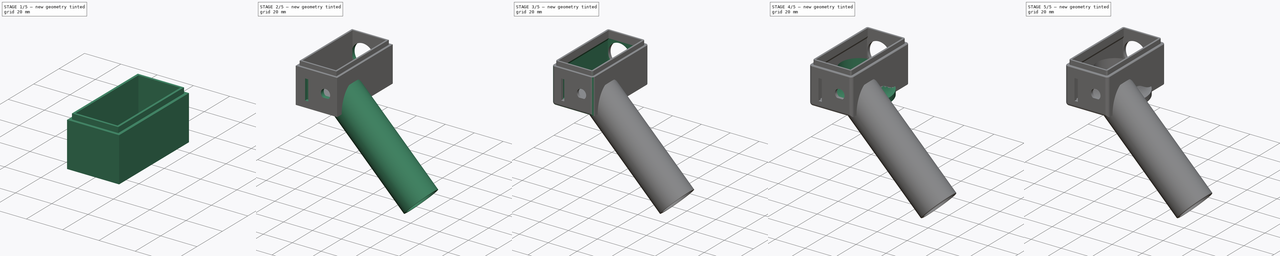
[diagram: build sequence overview — one tinted view per stage of 5, left to right]
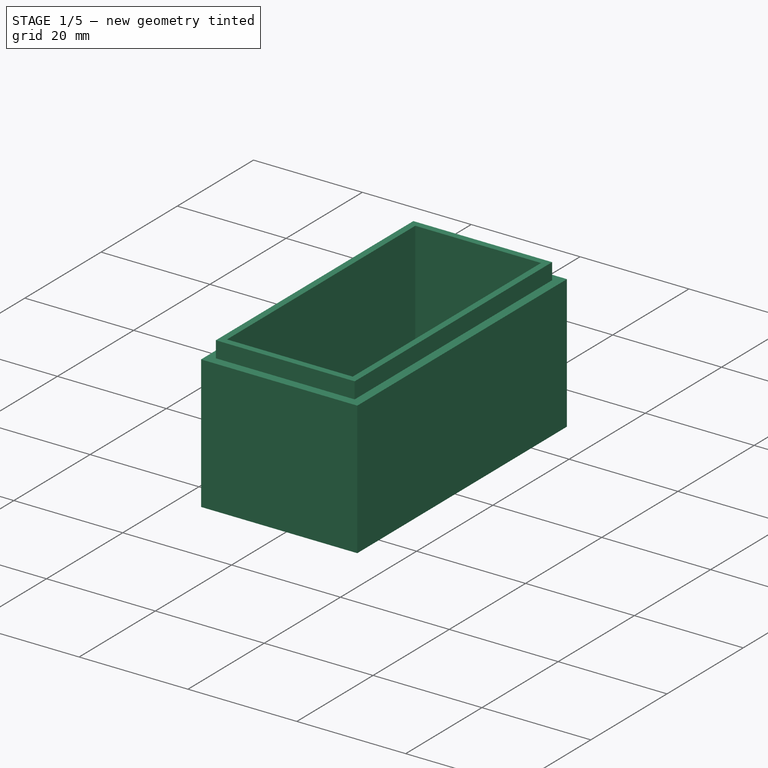
[diagram: stage 1 of 5 — iso view after this stage's code; geometry added in this stage tinted green]
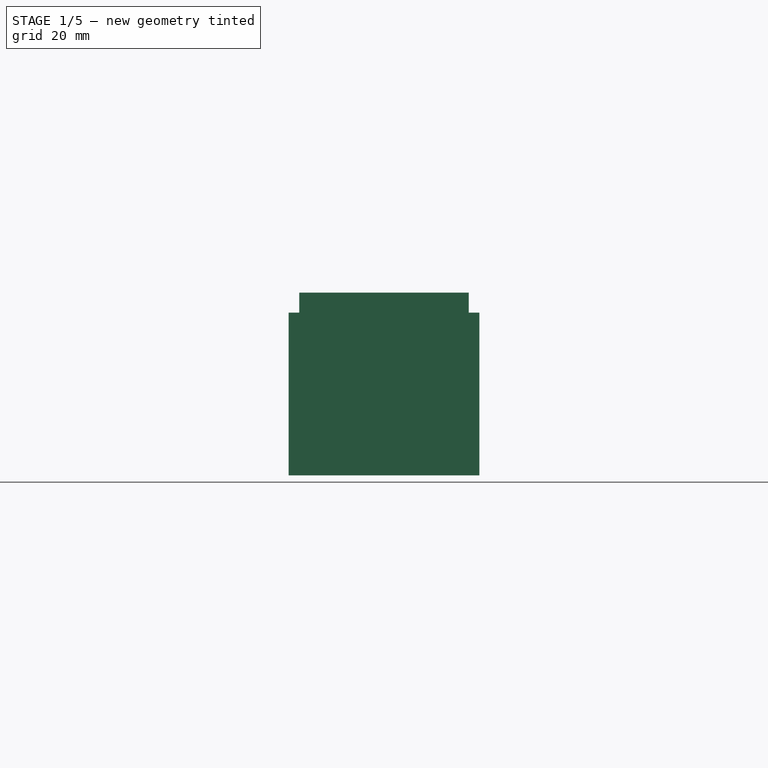
[diagram: stage 1 of 5 — front view after this stage's code; geometry added in this stage tinted green]
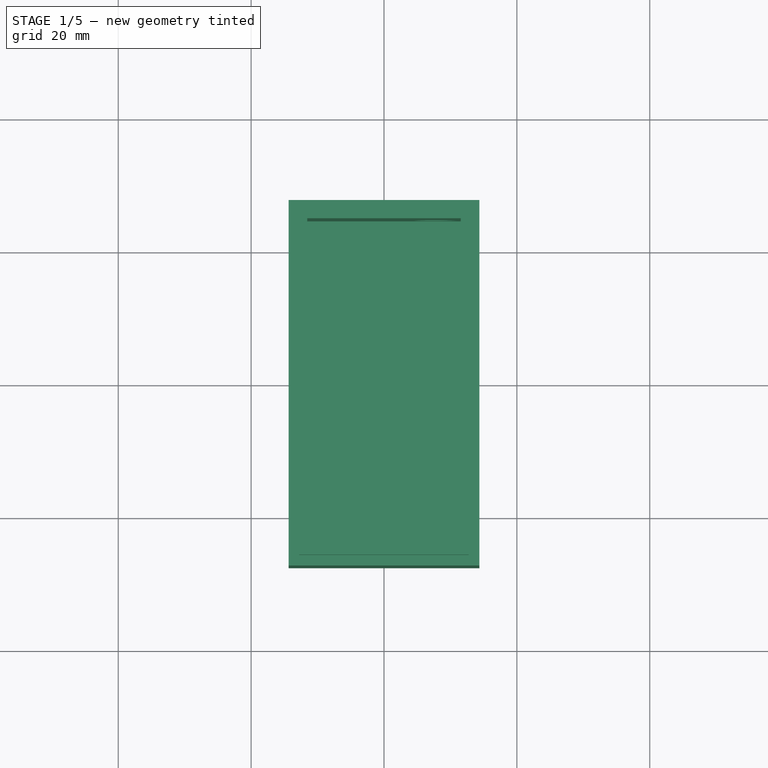
[diagram: stage 1 of 5 — top view after this stage's code; geometry added in this stage tinted green]
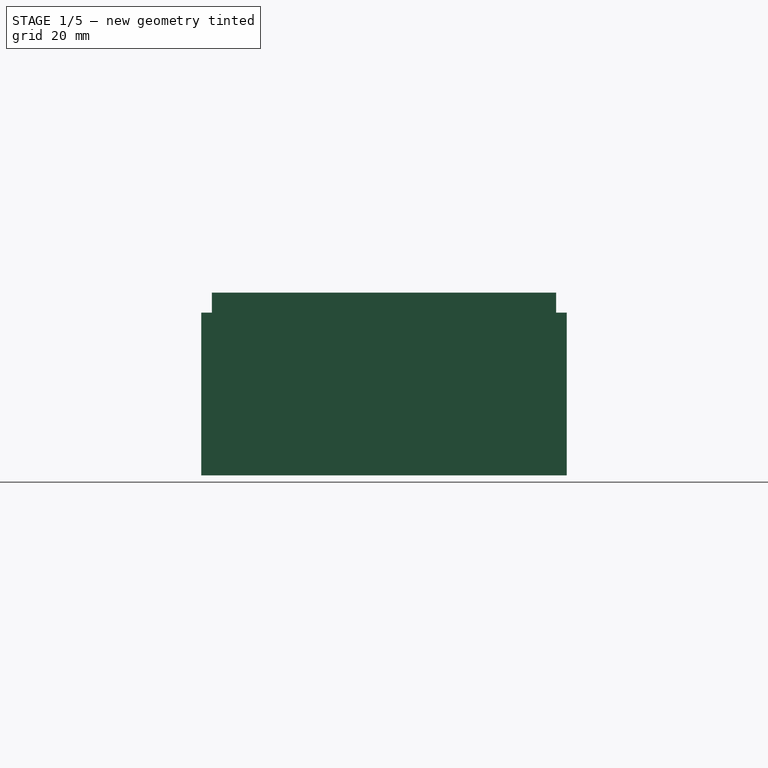
[diagram: stage 1 of 5 — right view after this stage's code; geometry added in this stage tinted green]
FCSTD DOCUMENT  (FreeCAD 0.19R)
Label: Lilygo_bottom-my-with_hand
License: All rights reserved
LicenseURL: http://en.wikipedia.org/wiki/All_rights_reserved
objects: Sketcher::SketchObject×14, PartDesign::Pocket×9, PartDesign::Fillet×6, PartDesign::Pad×4, PartDesign::Body×3, PartDesign::Chamfer×1, PartDesign::Revolution×1, PartDesign::Plane×1
note: 60 computed .brp shape members not serialized (recipe doc carries the construction recipe); baked Part::Feature solids carry a one-line shape summary decoded from their .brp

FEATURE [Sketcher::SketchObject] Sketch
  FullyConstrained = true
  MapMode = 5
  Support = -> [XY_Plane]
  sketch-geometry (4):
    g0: LineSegment StartX=-14.35 StartY=27.5 StartZ=0 EndX=14.35 EndY=27.5 EndZ=0
    g1: LineSegment StartX=14.35 StartY=27.5 StartZ=0 EndX=14.35 EndY=-27.5 EndZ=0
    g2: LineSegment StartX=14.35 StartY=-27.5 StartZ=0 EndX=-14.35 EndY=-27.5 EndZ=0
    g3: LineSegment StartX=-14.35 StartY=-27.5 StartZ=0 EndX=-14.35 EndY=27.5 EndZ=0
  constraints (10):
    c: Coincident(g0,g1)
    c: Coincident(g1,g2)
    c: Coincident(g2,g3)
    c: Coincident(g3,g0)
    c: Horizontal(g2)
    c: Vertical(g1)
    c: DistanceX(g0,g0) = 28.7  '28,80 - 0,1'
    c: DistanceY(g1,g1) = 55  '55,10 - 0,1'
    c: Symmetric(g0,g0,g-2)
    c: Symmetric(g0,g2,g-1)
FEATURE [PartDesign::Pad] Pad
  Direction = (1,1,1)
  Length = 27.5
  Length2 = 100
  Profile = -> Sketch
  Type = 0
FEATURE [Sketcher::SketchObject] Sketch001
  ExternalGeometry = -> [Pad]
  FullyConstrained = true
  MapMode = 5
  Placement = pos=(0,0,27.5) rot=(0,0,1;0rad)
  Support = -> [Pad]
  sketch-geometry (8):
    g0: LineSegment StartX=-14.35 StartY=27.5 StartZ=0 EndX=14.35 EndY=27.5 EndZ=0
    g1: LineSegment StartX=14.35 StartY=27.5 StartZ=0 EndX=14.35 EndY=-27.5 EndZ=0
    g2: LineSegment StartX=14.35 StartY=-27.5 StartZ=0 EndX=-14.35 EndY=-27.5 EndZ=0
    g3: LineSegment StartX=-14.35 StartY=-27.5 StartZ=0 EndX=-14.35 EndY=27.5 EndZ=0
    g4: LineSegment StartX=-12.75 StartY=25.9 StartZ=0 EndX=12.75 EndY=25.9 EndZ=0
    g5: LineSegment StartX=12.75 StartY=25.9 StartZ=0 EndX=12.75 EndY=-25.9 EndZ=0
    g6: LineSegment StartX=12.75 StartY=-25.9 StartZ=0 EndX=-12.75 EndY=-25.9 EndZ=0
    g7: LineSegment StartX=-12.75 StartY=-25.9 StartZ=0 EndX=-12.75 EndY=25.9 EndZ=0
  constraints (19):
    c: Coincident(g0,g1)
    c: Coincident(g1,g2)
    c: Coincident(g2,g3)
    c: Coincident(g3,g0)
    c: Horizontal(g2)
    c: Vertical(g1)
    c: Symmetric(g0,g0,g-2)
    c: Symmetric(g0,g2,g-1)
    c: Coincident(g4,g5)
    c: Coincident(g5,g6)
    c: Coincident(g6,g7)
    c: Coincident(g7,g4)
    c: Horizontal(g6)
    c: Vertical(g5)
    c: Symmetric(g4,g4,g-2)
    c: Symmetric(g4,g6,g-1)
    c: DistanceY(g4,g0) = 1.6
    c: DistanceX(g5,g1) = 1.6
    c: Coincident(g0,g-3)
FEATURE [PartDesign::Pocket] Pocket
  BaseFeature = -> Pad
  Length = 3
  Length2 = 100
  Profile = -> Sketch001
  Type = 0
FEATURE [Sketcher::SketchObject] Sketch002
  ExternalGeometry = -> [Pocket]
  FullyConstrained = true
  MapMode = 5
  Placement = pos=(0,0,27.5) rot=(0,0,1;0rad)
  Support = -> [Pocket]
  sketch-geometry (4):
    g0: LineSegment StartX=-11.55 StartY=24.7 StartZ=0 EndX=11.55 EndY=24.7 EndZ=0
    g1: LineSegment StartX=11.55 StartY=24.7 StartZ=0 EndX=11.55 EndY=-24.7 EndZ=0
    g2: LineSegment StartX=11.55 StartY=-24.7 StartZ=0 EndX=-11.55 EndY=-24.7 EndZ=0
    g3: LineSegment StartX=-11.55 StartY=-24.7 StartZ=0 EndX=-11.55 EndY=24.7 EndZ=0
  constraints (10):
    c: Coincident(g0,g1)
    c: Coincident(g1,g2)
    c: Coincident(g2,g3)
    c: Coincident(g3,g0)
    c: Horizontal(g2)
    c: Vertical(g1)
    c: Symmetric(g0,g0,g-2)
    c: Symmetric(g0,g2,g-1)
    c: DistanceX(g-3,g0) = 1.2
    c: DistanceY(g0,g-3) = 1.2
FEATURE [PartDesign::Pocket] Pocket001
  BaseFeature = -> Pocket
  Length = 26
  Length2 = 100
  Profile = -> Sketch002
  Type = 0
FEATURE [Sketcher::SketchObject] Sketch003
  FullyConstrained = false
  MapMode = 5
  Placement = pos=(0,27.5,0) rot=(0,0.707107,0.707107;3.14159rad)
  sketch-geometry (1):
    g0: Circle CenterX=-7.8819 CenterY=7.25 CenterZ=0 NormalX=0 NormalY=0 NormalZ=1 AngleXU=0 Radius=3.4
  constraints (1):
    c: Radius(g0) = 3.4
FEATURE [PartDesign::Pocket] Pocket002
  BaseFeature = -> Pocket001
  Length = 5
  Length2 = 100
  Profile = -> Sketch003
  Type = 0
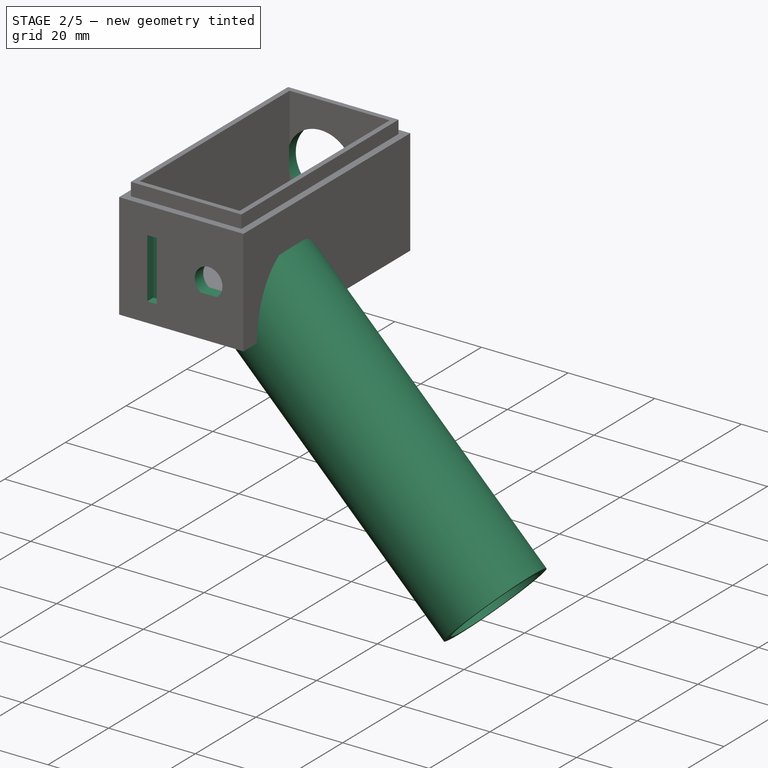
[diagram: stage 2 of 5 — iso view after this stage's code; geometry added in this stage tinted green]
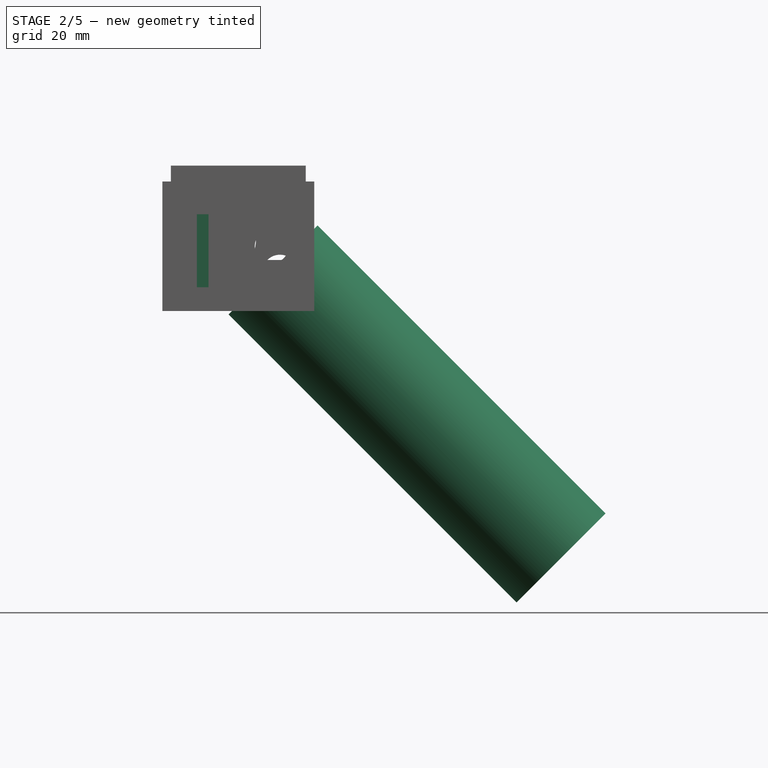
[diagram: stage 2 of 5 — front view after this stage's code; geometry added in this stage tinted green]
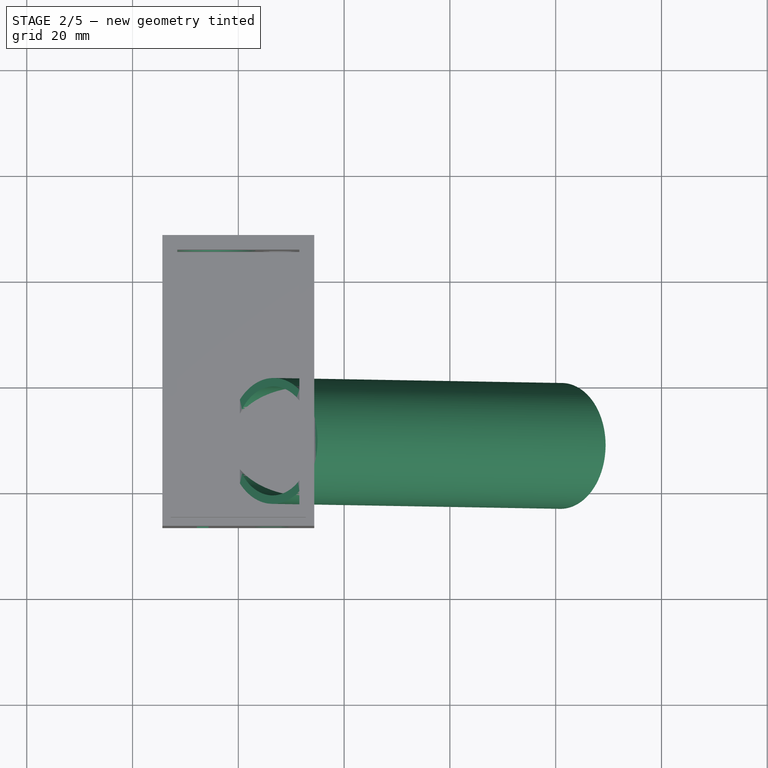
[diagram: stage 2 of 5 — top view after this stage's code; geometry added in this stage tinted green]
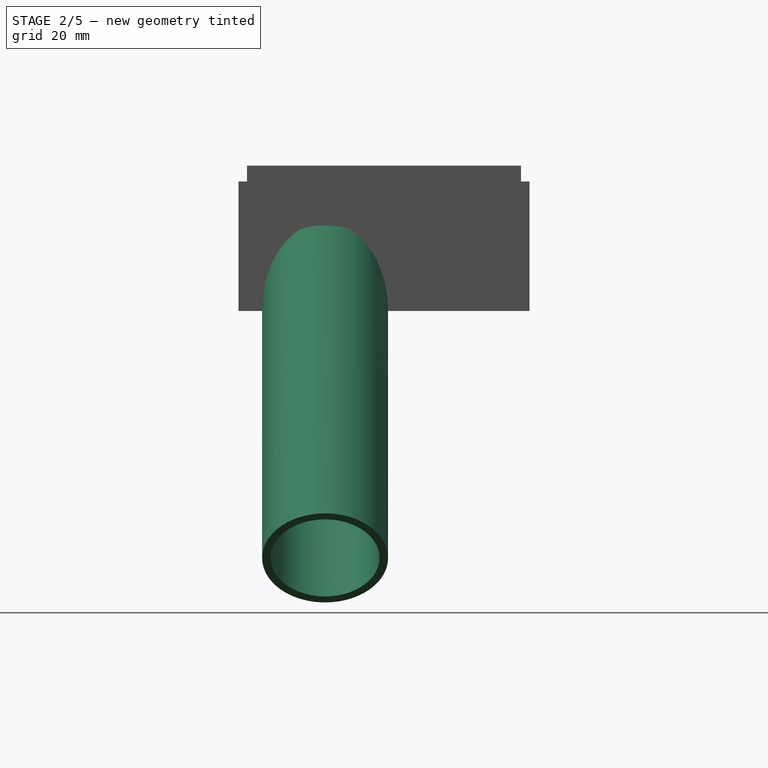
[diagram: stage 2 of 5 — right view after this stage's code; geometry added in this stage tinted green]
FEATURE [PartDesign::Body] Body001  label="Button"
  Group = -> [Sketch005,Pad001,Chamfer001,Fillet003,Sketch006,Pocket004,Fillet004]
  Origin = -> Origin001
  Tip = -> Fillet004
FEATURE [Sketcher::SketchObject] Sketch007
  FullyConstrained = true
  MapMode = 5
  Placement = pos=(0,-27.5,0) rot=(1,0,0;1.5708rad)
  sketch-geometry (4):
    g0: LineSegment StartX=-7.85 StartY=18.3 StartZ=0 EndX=-5.65 EndY=18.3 EndZ=0
    g1: LineSegment StartX=-5.65 StartY=18.3 StartZ=0 EndX=-5.65 EndY=4.5 EndZ=0
    g2: LineSegment StartX=-5.65 StartY=4.5 StartZ=0 EndX=-7.85 EndY=4.5 EndZ=0
    g3: LineSegment StartX=-7.85 StartY=4.5 StartZ=0 EndX=-7.85 EndY=18.3 EndZ=0
  constraints (12):
    c: Coincident(g0,g1)
    c: Coincident(g1,g2)
    c: Coincident(g2,g3)
    c: Coincident(g3,g0)
    c: Horizontal(g0)
    c: Horizontal(g2)
    c: Vertical(g1)
    c: Vertical(g3)
    c: DistanceX(g0,g0) = 2.2
    c: DistanceY(g3,g3) = 13.8
    c: DistanceX(g1,g-1) = 5.65
    c: DistanceY(g-1,g1) = 4.5
FEATURE [PartDesign::Pocket] Pocket005
  BaseFeature = -> Pocket002
  Length = 2
  Length2 = 100
  Profile = -> Sketch007
  Type = 0
FEATURE [Sketcher::SketchObject] Sketch008
  FullyConstrained = false
  MapMode = 5
  Placement = pos=(0,27.5,0) rot=(0,0.707107,0.707107;3.14159rad)
  Support = -> [Pocket005]
  sketch-geometry (1):
    g0: Circle CenterX=4.37291 CenterY=13.5 CenterZ=0 NormalX=0 NormalY=0 NormalZ=1 AngleXU=0 Radius=7.7
  constraints (2):
    c: Radius(g0) = 7.7
    c: DistanceY(g-1,g0) = 13.5
FEATURE [PartDesign::Pocket] Pocket006
  BaseFeature = -> Pocket005
  Length = 3
  Length2 = 100
  Profile = -> Sketch008
  Type = 0
FEATURE [PartDesign::Body] Body002  label="Bat_cap"
  Group = -> [Sketch012,Revolution]
  Origin = -> Origin002
  Tip = -> Revolution
FEATURE [PartDesign::Plane] DatumPlane
  AttachmentOffset = pos=(0,0,0) rot=(1,0,0;0.785398rad)
  Length = 61.8921
  MapMode = 5
  Placement = pos=(14.35,0,0) rot=(0.678598,0.678598,0.281085;2.59356rad)
  ResizeMode = 0
  Width = 82.6027
FEATURE [Sketcher::SketchObject] Sketch009
  FullyConstrained = false
  MapMode = 5
  Placement = pos=(14.35,0,0) rot=(0.678598,0.678598,0.281085;2.59356rad)
  Support = -> [DatumPlane]
  sketch-geometry (2):
    g0: Circle CenterX=-11.1372 CenterY=0 CenterZ=0 NormalX=0 NormalY=0 NormalZ=1 AngleXU=0 Radius=10.3
    g1: Circle CenterX=-11.1372 CenterY=0 CenterZ=0 NormalX=0 NormalY=0 NormalZ=1 AngleXU=0 Radius=11.9
  constraints (4):
    c: Radius(g0) = 10.3
    c: Coincident(g0,g1)
    c: Radius(g1) = 11.9
    c: DistanceY(g-1,g0) = 0
FEATURE [PartDesign::Pad] Pad002
  BaseFeature = -> Pocket006
  Direction = (1,1,1)
  Length = 66
  Length2 = 11
  Profile = -> Sketch009
  Type = 4
FEATURE [PartDesign::Pocket] Pocket008
  BaseFeature = -> Pad002
  Length = 5
  Length2 = 100
  Profile = -> Sketch011
  Type = 2
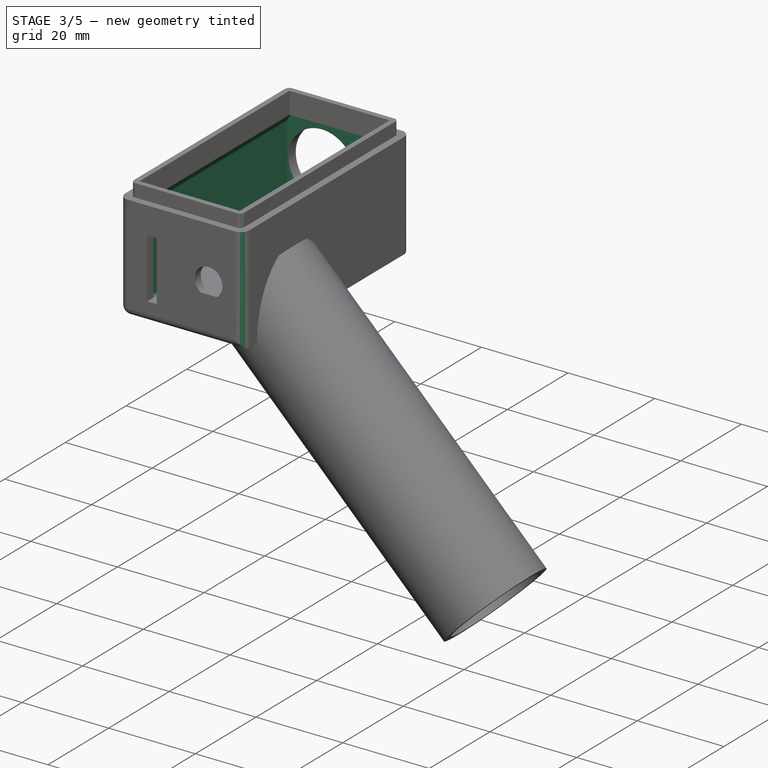
[diagram: stage 3 of 5 — iso view after this stage's code; geometry added in this stage tinted green]
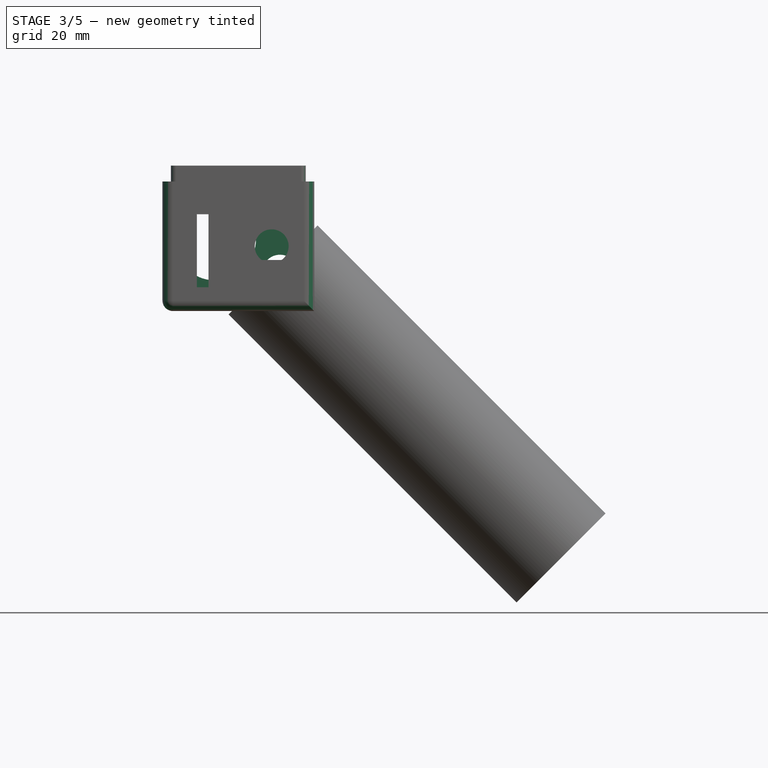
[diagram: stage 3 of 5 — front view after this stage's code; geometry added in this stage tinted green]
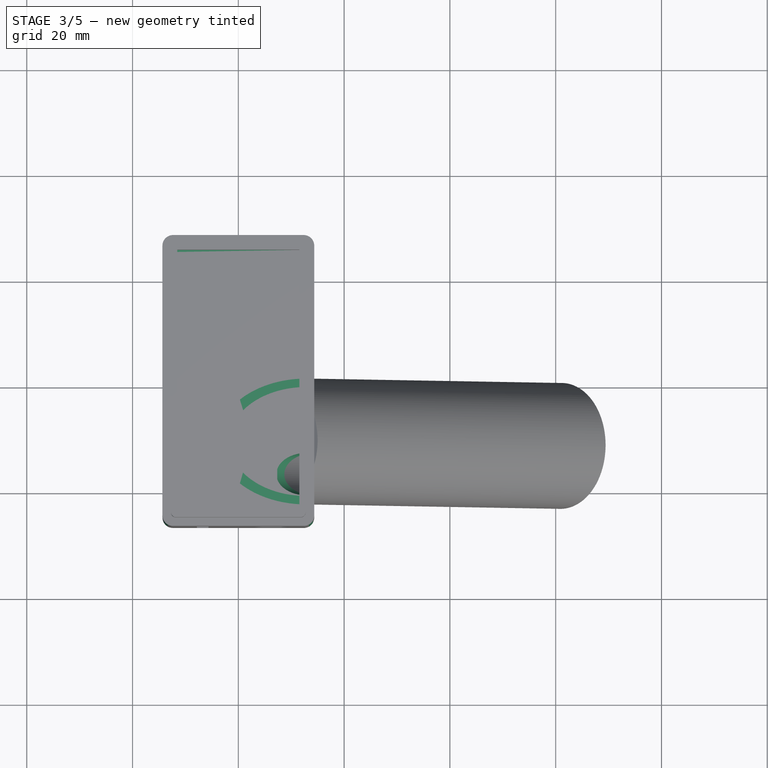
[diagram: stage 3 of 5 — top view after this stage's code; geometry added in this stage tinted green]
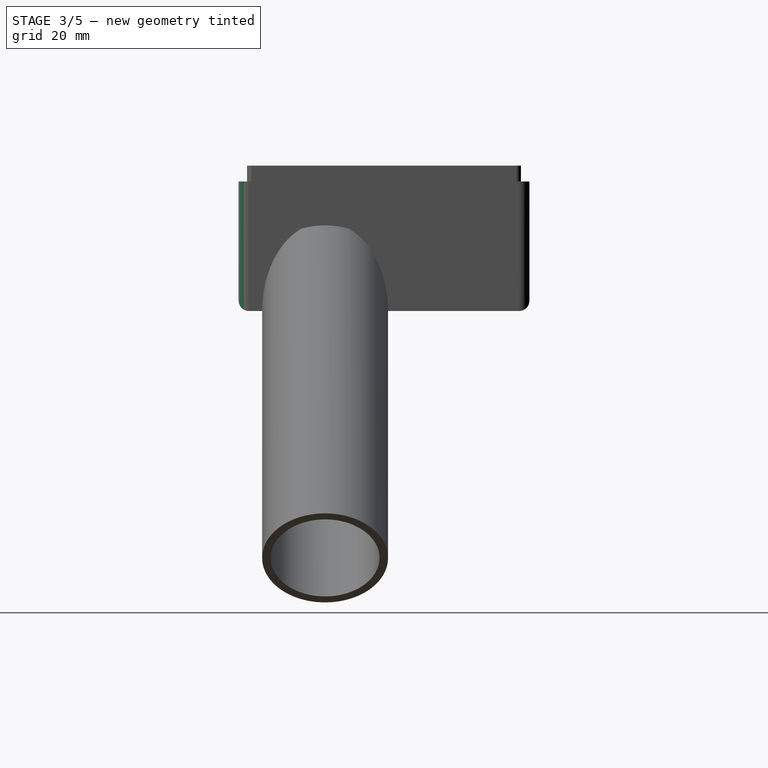
[diagram: stage 3 of 5 — right view after this stage's code; geometry added in this stage tinted green]
FEATURE [Sketcher::SketchObject] Sketch014
  FullyConstrained = false
  MapMode = 5
  Placement = pos=(14.35,0,0) rot=(0.678598,0.678598,0.281085;2.59356rad)
  Support = -> [DatumPlane]
  sketch-geometry (1):
    g0: Circle CenterX=-17.307 CenterY=0 CenterZ=0 NormalX=0 NormalY=0 NormalZ=1 AngleXU=0 Radius=4
  constraints (2):
    c: PointOnObject(g0,g-1)
    c: Radius(g0) = 4
FEATURE [PartDesign::Pocket] Pocket010
  BaseFeature = -> Pocket008
  Length = 6
  Length2 = 100
  Profile = -> Sketch014
  Type = 0
FEATURE [Sketcher::SketchObject] Sketch004
  FullyConstrained = false
  MapMode = 5
  Placement = pos=(0,0,1.5) rot=(0,0,1;0rad)
  Support = -> [Pocket010]
  sketch-geometry (4):
    g0: LineSegment StartX=-12.35 StartY=25.1 StartZ=0 EndX=12.35 EndY=25.1 EndZ=0
    g1: LineSegment StartX=12.35 StartY=25.1 StartZ=0 EndX=12.35 EndY=-25.5 EndZ=0
    g2: LineSegment StartX=12.35 StartY=-25.5 StartZ=0 EndX=-12.35 EndY=-25.5 EndZ=0
    g3: LineSegment StartX=-12.35 StartY=-25.5 StartZ=0 EndX=-12.35 EndY=25.1 EndZ=0
  constraints (8):
    c: Coincident(g0,g1)
    c: Coincident(g1,g2)
    c: Coincident(g2,g3)
    c: Coincident(g3,g0)
    c: Horizontal(g0)
    c: Vertical(g1)
    c: Vertical(g3)
    c: Symmetric(g1,g2,g-2)
FEATURE [PartDesign::Pocket] Pocket011
  BaseFeature = -> Pocket010
  Length = 21
  Length2 = 100
  Profile = -> Sketch004
  Reversed = true
  Type = 0
FEATURE [Sketcher::SketchObject] Sketch015
  ExternalGeometry = -> [Pocket011]
  FullyConstrained = false
  MapMode = 5
  Placement = pos=(0,25.1,0) rot=(1,0,0;1.5708rad)
  Support = -> [Pocket011]
  sketch-geometry (3):
    g0: LineSegment StartX=-12.35 StartY=22.5 StartZ=0 EndX=-11.55 EndY=22.5 EndZ=0
    g1: LineSegment StartX=-11.55 StartY=22.5 StartZ=0 EndX=-12.35 EndY=20.9954 EndZ=0
    g2: LineSegment StartX=-12.35 StartY=20.9954 StartZ=0 EndX=-12.35 EndY=22.5 EndZ=0
  constraints (7):
    c: Coincident(g0,g-3)
    c: Horizontal(g0)
    c: Coincident(g1,g0)
    c: PointOnObject(g1,g-4)
    c: Coincident(g2,g1)
    c: Coincident(g2,g0)
    c: Vertical(g2)
FEATURE [PartDesign::Pad] Pad003
  BaseFeature = -> Pocket011
  Direction = (1,1,1)
  Length = 10
  Length2 = 100
  Profile = -> Sketch015
  Type = 2
FEATURE [PartDesign::Fillet] Fillet
  Base = -> Pad003 [Edge43,Edge45,Edge40,Edge41]
  BaseFeature = -> Pad003
  Radius = 1
  SupportTransform = false
FEATURE [PartDesign::Fillet] Fillet005
  Base = -> Fillet [Edge30,Edge41,Edge39,Edge31,Edge29,Edge40,Edge48]
  BaseFeature = -> Fillet
  Radius = 2
  SupportTransform = false
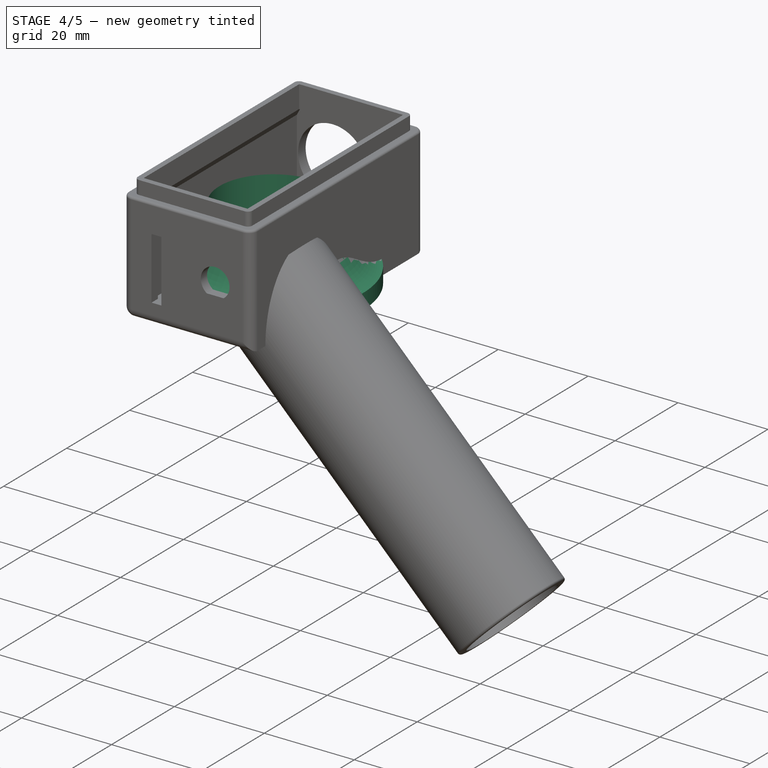
[diagram: stage 4 of 5 — iso view after this stage's code; geometry added in this stage tinted green]
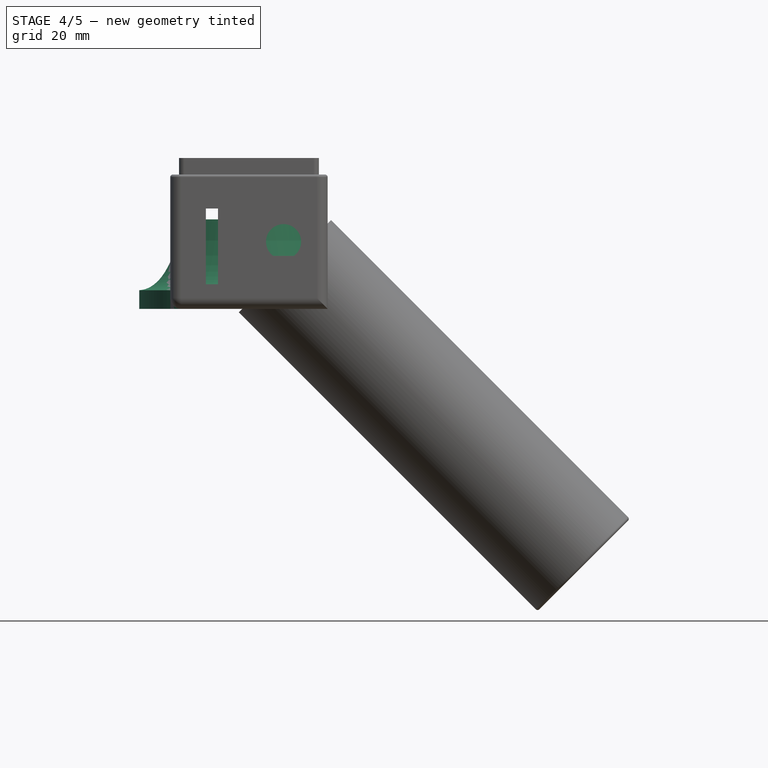
[diagram: stage 4 of 5 — front view after this stage's code; geometry added in this stage tinted green]
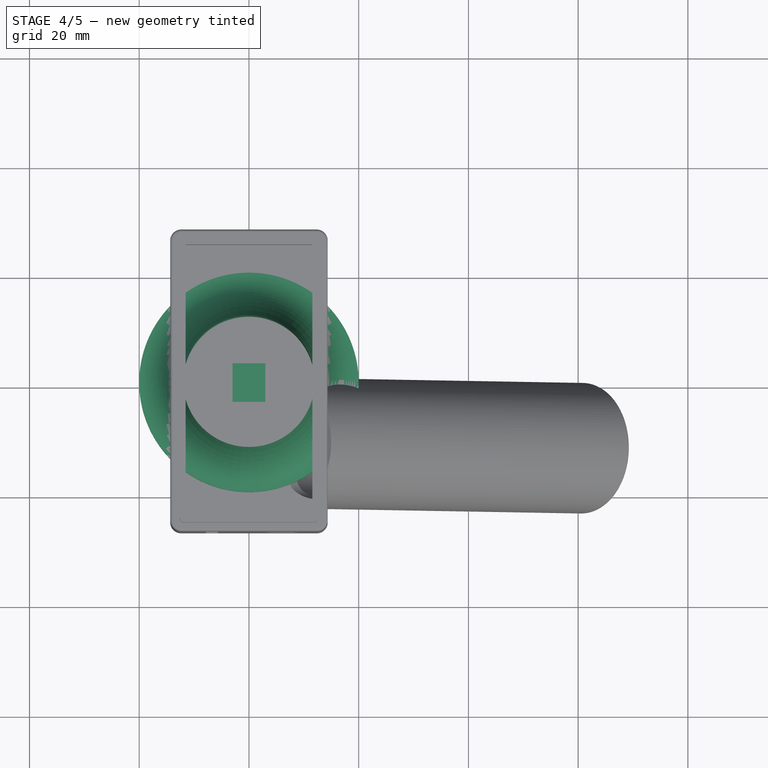
[diagram: stage 4 of 5 — top view after this stage's code; geometry added in this stage tinted green]
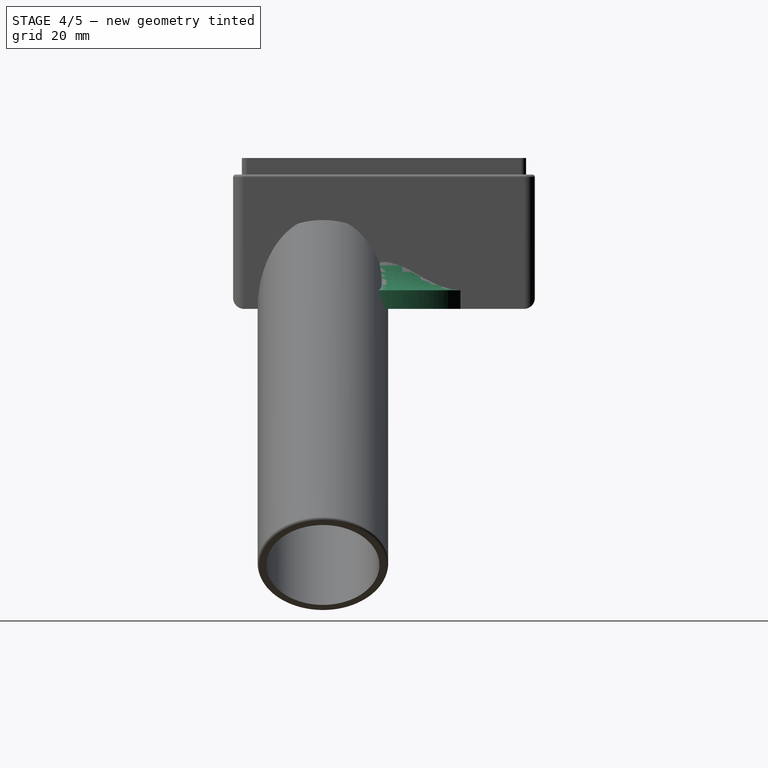
[diagram: stage 4 of 5 — right view after this stage's code; geometry added in this stage tinted green]
FEATURE [Sketcher::SketchObject] Sketch005
  FullyConstrained = true
  MapMode = 5
  Support = -> [XY_Plane001]
  sketch-geometry (4):
    g0: LineSegment StartX=-3 StartY=3.5 StartZ=0 EndX=3 EndY=3.5 EndZ=0
    g1: LineSegment StartX=3 StartY=3.5 StartZ=0 EndX=3 EndY=-3.5 EndZ=0
    g2: LineSegment StartX=3 StartY=-3.5 StartZ=0 EndX=-3 EndY=-3.5 EndZ=0
    g3: LineSegment StartX=-3 StartY=-3.5 StartZ=0 EndX=-3 EndY=3.5 EndZ=0
  constraints (10):
    c: Coincident(g0,g1)
    c: Coincident(g1,g2)
    c: Coincident(g2,g3)
    c: Coincident(g3,g0)
    c: Horizontal(g2)
    c: Vertical(g1)
    c: DistanceX(g0,g0) = 6
    c: DistanceY(g3,g3) = 7
    c: Symmetric(g0,g0,g-2)
    c: Symmetric(g0,g2,g-1)
FEATURE [PartDesign::Pad] Pad001
  Direction = (1,1,1)
  Length = 2.5
  Length2 = 100
  Profile = -> Sketch005
  Type = 0
FEATURE [Sketcher::SketchObject] Sketch011
  FullyConstrained = false
  MapMode = 5
  Placement = pos=(0,-27.5,0) rot=(1,0,0;1.5708rad)
  sketch-geometry (2):
    g0: ArcOfCircle CenterX=6.30884 CenterY=12.2545 CenterZ=0 NormalX=0 NormalY=0 NormalZ=1 AngleXU=0 Radius=3.2 StartAngle=5.33476 EndAngle=10.3732
    g1: LineSegment StartX=4.44336 StartY=9.65451 StartZ=0 EndX=8.17431 EndY=9.65451 EndZ=0
  constraints (5):
    c: Radius(g0) = 3.2
    c: Horizontal(g1)
    c: DistanceY(g1,g0) = 2.6
    c: Coincident(g0,g1)
    c: Coincident(g0,g1)
FEATURE [Sketcher::SketchObject] Sketch012
  FullyConstrained = false
  MapMode = 5
  Placement = pos=(0,0,0) rot=(0.57735,0.57735,0.57735;2.0944rad)
  Support = -> [YZ_Plane002]
  sketch-geometry (11):
    g0: LineSegment StartX=0 StartY=0 StartZ=0 EndX=-20 EndY=0 EndZ=0
    g1: LineSegment StartX=-12 StartY=16.3058 StartZ=0 EndX=-12 EndY=1.2 EndZ=0
    g2: LineSegment StartX=-20 StartY=0 StartZ=0 EndX=-20 EndY=3.40275 EndZ=0
    g3: Circle CenterX=-12 CenterY=16.3058 CenterZ=0 NormalX=0 NormalY=0 NormalZ=1 AngleXU=0 Radius=1
    g4: Circle CenterX=-14.526 CenterY=3.768 CenterZ=0 NormalX=0 NormalY=0 NormalZ=1 AngleXU=0 Radius=1
    g5: Circle CenterX=-20 CenterY=3.40275 CenterZ=0 NormalX=0 NormalY=0 NormalZ=1 AngleXU=0 Radius=1
    g6: BSplineCurve PolesCount=3 KnotsCount=2 Degree=2 IsPeriodic=0
    g7: GeomPoint X=-12 Y=16.3058 Z=0
    g8: GeomPoint X=-20 Y=3.40275 Z=0
    g9: LineSegment StartX=-12 StartY=1.2 StartZ=0 EndX=0 EndY=1.2 EndZ=0
    g10: LineSegment StartX=0 StartY=1.2 StartZ=0 EndX=0 EndY=0 EndZ=0
  constraints (23):
    c: Coincident(g0,g-1)
    c: PointOnObject(g0,g-1)
    c: DistanceX(g0,g0) = 20
    c: Vertical(g1)
    c: DistanceX(g1,g0) = 12
    c: Coincident(g2,g0)
    c: Vertical(g2)
    c: Coincident(g6,g1)
    c: Weight(g3) = 1
    c: Equal(g3,g4)
    c: Equal(g3,g5)
    c: Coincident(g6,g2)
    c: InternalAlignment(g3,g6)
    c: InternalAlignment(g4,g6)
    c: InternalAlignment(g5,g6)
    c: InternalAlignment(g7,g6)
    c: InternalAlignment(g8,g6)
    c: Coincident(g9,g1)
    c: PointOnObject(g9,g-2)
    c: Horizontal(g9)
    c: DistanceY(g0,g9) = 1.2
    c: Coincident(g10,g0)
    c: Vertical(g10)
FEATURE [PartDesign::Revolution] Revolution
  Angle = 360
  Axis = (-2e-16,3e-16,1)
  Base = (0,0,0)
  Placement = pos=(0,0,0) rot=(0.57735,0.57735,0.57735;2.0944rad)
  Profile = -> Sketch012
  ReferenceAxis = -> Sketch012 [V_Axis]
FEATURE [PartDesign::Fillet] Fillet006
  Base = -> Fillet005 [Edge5,Edge7,Edge8,Edge3,Edge1,Edge2,Edge4,Edge6]
  BaseFeature = -> Fillet005
  Radius = 0.5
  SupportTransform = false
FEATURE [PartDesign::Fillet] Fillet007
  Base = -> Fillet006 [Edge90]
  BaseFeature = -> Fillet006
  Radius = 0.5
  SupportTransform = false
FEATURE [PartDesign::Body] Body
  Group = -> [Sketch,Pad,Sketch001,Pocket,Sketch002,Pocket001,Sketch003,Pocket002,Sketch007,Pocket005,Sketch008,Pocket006,Sketch009,Pad002,Sketch011,Pocket008,DatumPlane,Sketch014,Pocket010,Sketch004,Pocket011,Sketch015,Pad003,Fillet,Fillet005,Fillet006,Fillet007]
  Origin = -> Origin
  Tip = -> Fillet007
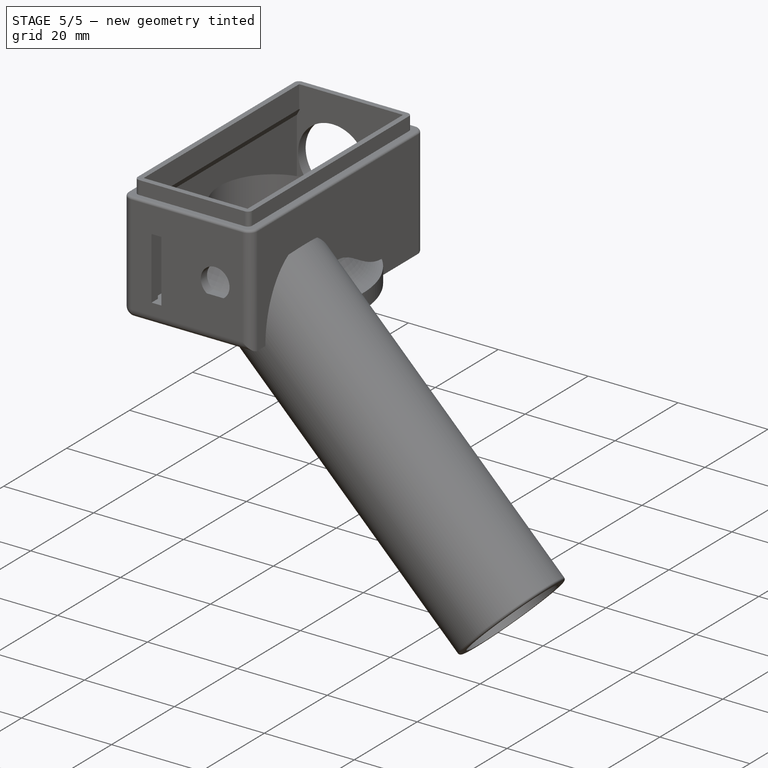
[diagram: stage 5 of 5 — iso view after this stage's code; geometry added in this stage tinted green]
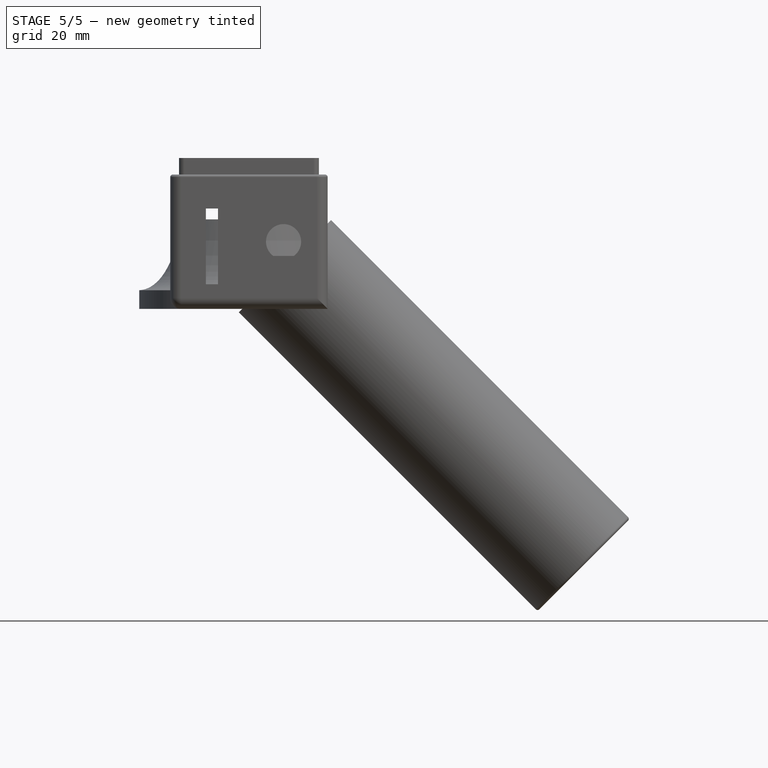
[diagram: stage 5 of 5 — front view after this stage's code; geometry added in this stage tinted green]
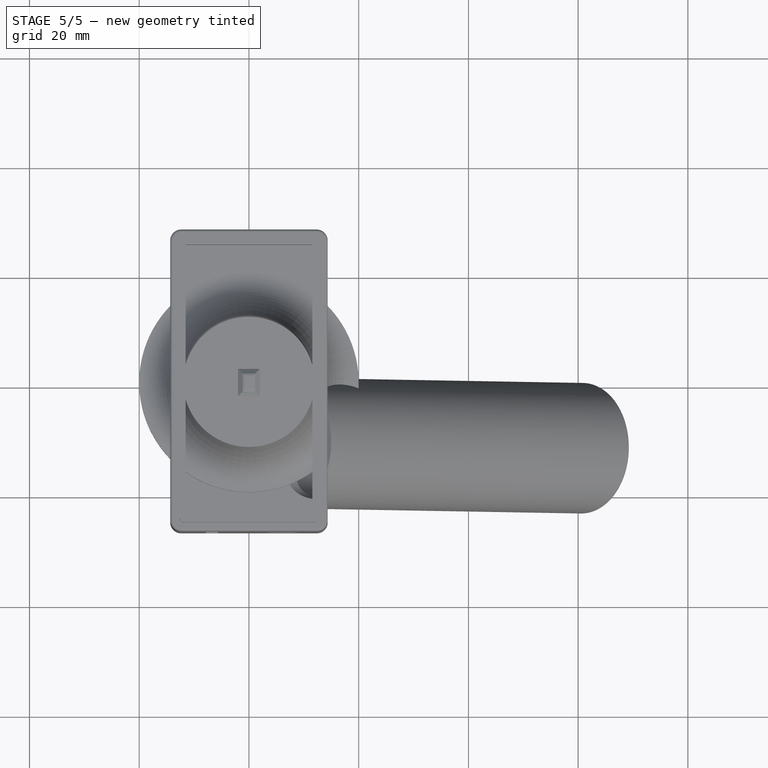
[diagram: stage 5 of 5 — top view after this stage's code; geometry added in this stage tinted green]
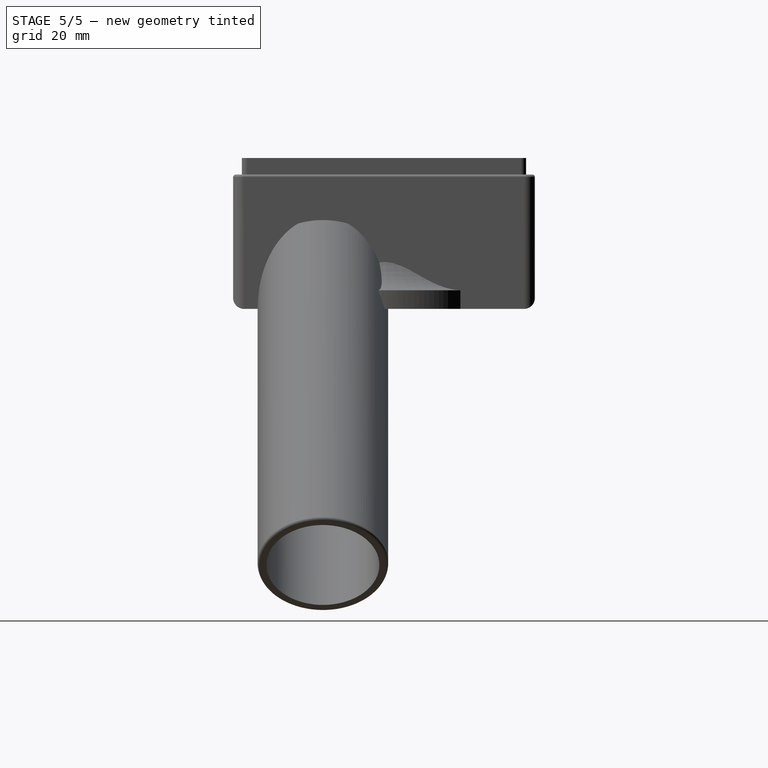
[diagram: stage 5 of 5 — right view after this stage's code; geometry added in this stage tinted green]
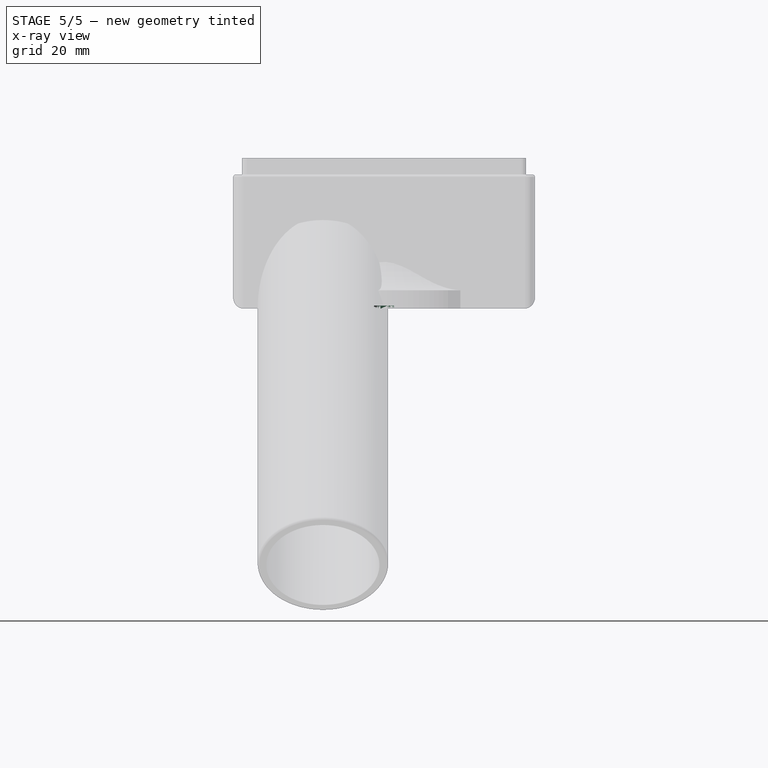
[diagram: stage 5 of 5 — x-ray composite at the right view; earlier geometry ghosted, this stage's added geometry solid]
FEATURE [PartDesign::Chamfer] Chamfer001
  Angle = 45
  Base = -> Pad001 [Face6]
  BaseFeature = -> Pad001
  ChamferType = 0
  FlipDirection = false
  Size = 2
  Size2 = 1
  SupportTransform = false
FEATURE [PartDesign::Fillet] Fillet003
  Base = -> Chamfer001 [Face8]
  BaseFeature = -> Chamfer001
  Radius = 1
  SupportTransform = false
FEATURE [Sketcher::SketchObject] Sketch006
  FullyConstrained = true
  MapMode = 5
  Placement = pos=(0,0,0) rot=(1,0,0;3.14159rad)
  Support = -> [Fillet003]
  sketch-geometry (4):
    g0: LineSegment StartX=-1.5 StartY=1.85 StartZ=0 EndX=1.5 EndY=1.85 EndZ=0
    g1: LineSegment StartX=1.5 StartY=1.85 StartZ=0 EndX=1.5 EndY=-1.85 EndZ=0
    g2: LineSegment StartX=1.5 StartY=-1.85 StartZ=0 EndX=-1.5 EndY=-1.85 EndZ=0
    g3: LineSegment StartX=-1.5 StartY=-1.85 StartZ=0 EndX=-1.5 EndY=1.85 EndZ=0
  constraints (10):
    c: Coincident(g0,g1)
    c: Coincident(g1,g2)
    c: Coincident(g2,g3)
    c: Coincident(g3,g0)
    c: Horizontal(g2)
    c: Vertical(g1)
    c: DistanceY(g3,g3) = 3.7
    c: DistanceX(g0,g0) = 3
    c: Symmetric(g0,g0,g-2)
    c: Symmetric(g2,g0,g-1)
FEATURE [PartDesign::Pocket] Pocket004
  BaseFeature = -> Fillet003
  Length = 0.6
  Length2 = 100
  Profile = -> Sketch006
  Type = 0
FEATURE [PartDesign::Fillet] Fillet004
  Base = -> Pocket004 [Edge34,Edge38,Edge36,Edge33]
  BaseFeature = -> Pocket004
  Radius = 1.2
  SupportTransform = false
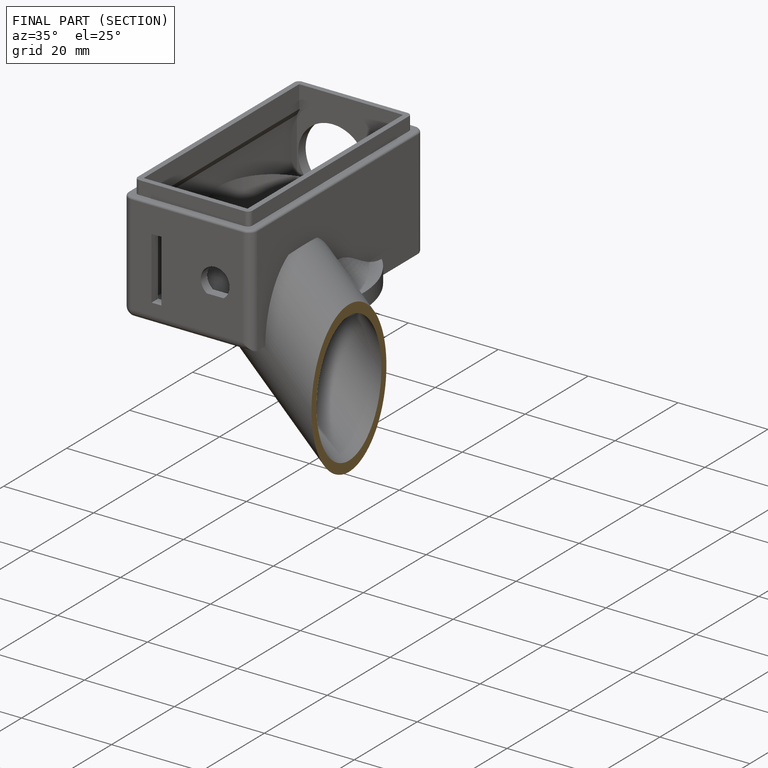
[diagram: finished part — half-section view (interior)]
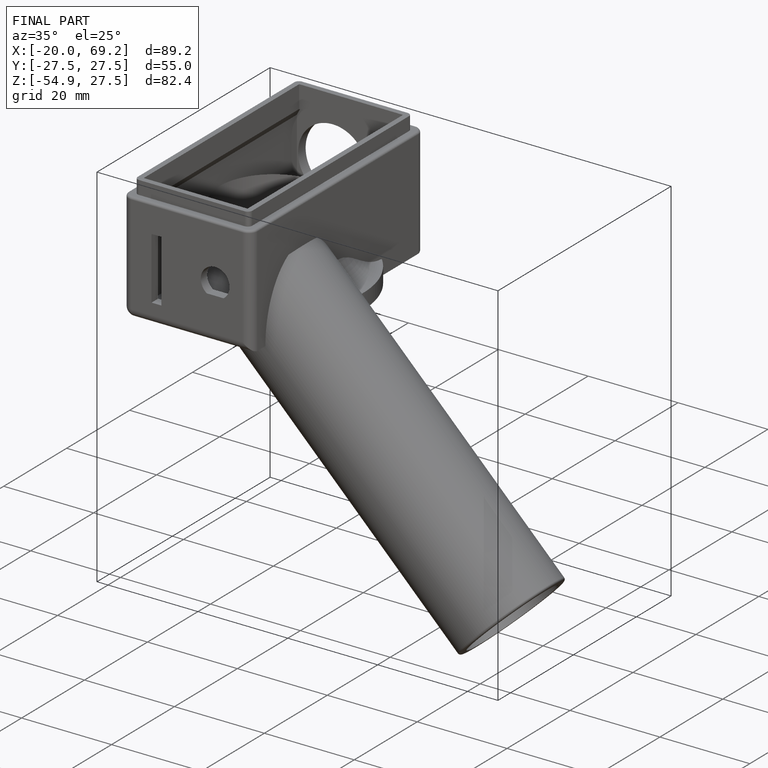
[diagram: finished part — iso view with bounding-box wireframe]
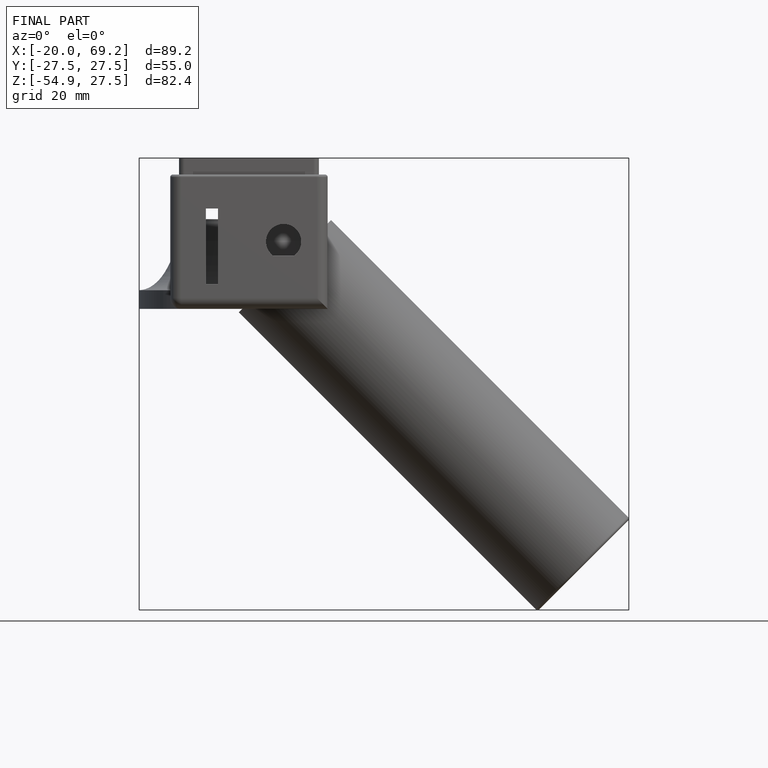
[diagram: finished part — front view with bounding-box wireframe]
